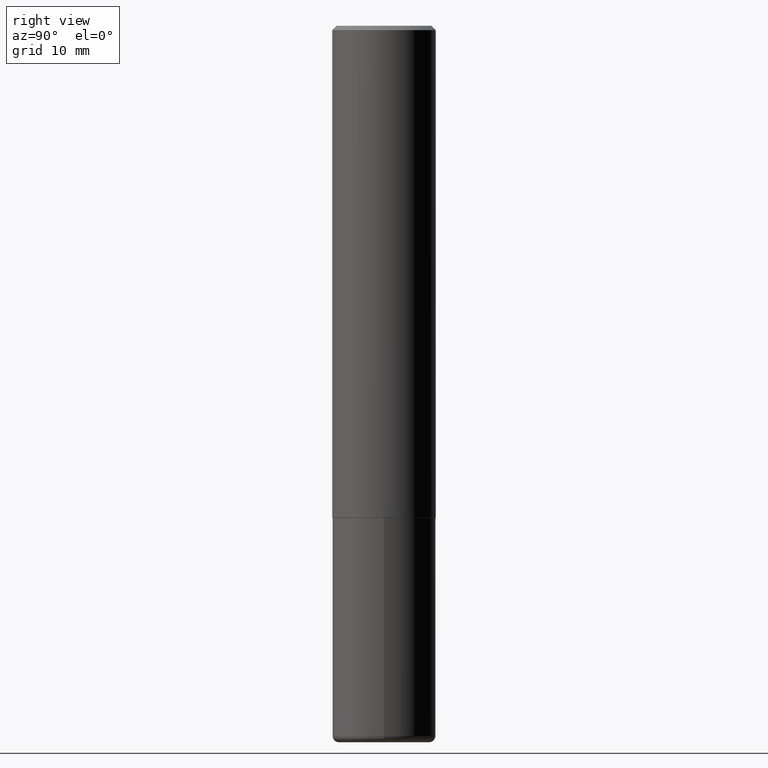
[diagram: clean part render]
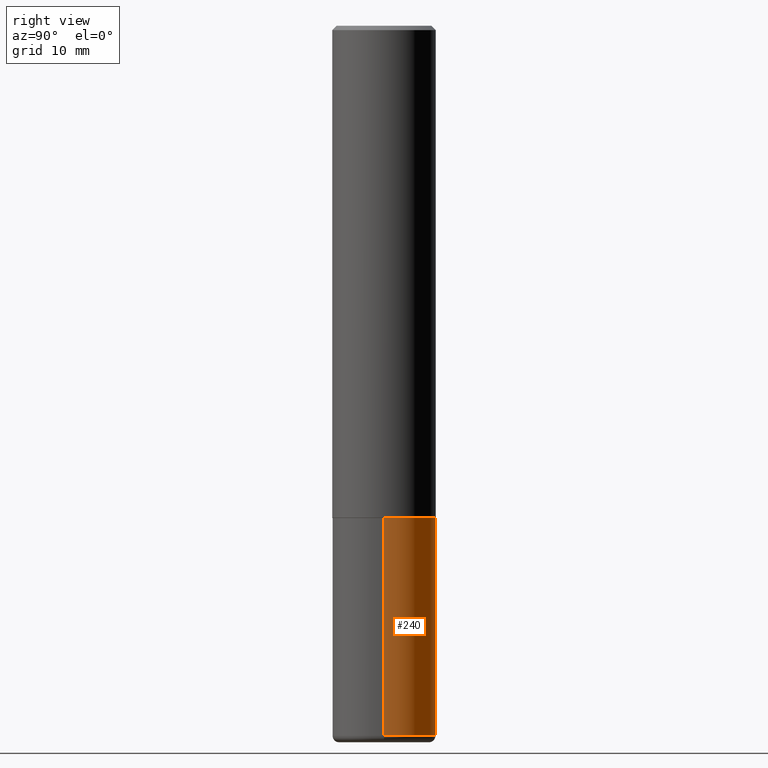
[diagram: same view with one face highlighted and labeled with its STEP entity id]
A machine part, right view. The second image highlights one B-rep face of the part: STEP entity #240.
In plain terms, the highlighted cylindrical surface (partial cylindrical patch) has radius 5.9995 mm, axis along (-0, 0, 1).
Its self-contained STEP definition (entity closure, byte-faithful):
#3 = DIRECTION ( 'NONE',  ( -2.445468806185136877E-29, 3.491481338843145188E-15, 1.000000000000000000 ) ) ;
#18 = CARTESIAN_POINT ( 'NONE',  ( -0.2362000000000000766, -7.891499259769821311E-15, -2.244100000000000428 ) ) ;
#26 = EDGE_CURVE ( 'NONE', #291, #218, #333, .T. ) ;
#42 = EDGE_CURVE ( 'NONE', #349, #291, #345, .T. ) ;
#46 = CYLINDRICAL_SURFACE ( 'NONE', #260, 0.2361999999999999933 ) ;
#63 = EDGE_LOOP ( 'NONE', ( #335, #64, #381, #129 ) ) ;
#64 = ORIENTED_EDGE ( 'NONE', *, *, #26, .T. ) ;
#81 = DIRECTION ( 'NONE',  ( 1.000000000000000000, -6.982962677686266711E-15, 4.876176775795936353E-29 ) ) ;
#85 = LINE ( 'NONE', #303, #376 ) ;
#102 = EDGE_CURVE ( 'NONE', #374, #218, #367, .T. ) ;
#129 = ORIENTED_EDGE ( 'NONE', *, *, #300, .F. ) ;
#138 = DIRECTION ( 'NONE',  ( -2.445468806185136597E-29, 3.491481338843145583E-15, 1.000000000000000000 ) ) ;
#141 = CARTESIAN_POINT ( 'NONE',  ( 7.917694353785617077E-29, -1.130436913077245307E-14, -3.237700000000000244 ) ) ;
#170 = CARTESIAN_POINT ( 'NONE',  ( 5.487876547960065873E-29, -7.835233272497903917E-15, -2.244100000000000428 ) ) ;
#172 = DIRECTION ( 'NONE',  ( -2.445468806185136597E-29, 3.491481338843145583E-15, 1.000000000000000000 ) ) ;
#186 = DIRECTION ( 'NONE',  ( -2.445468806185136877E-29, 3.491481338843145188E-15, 1.000000000000000000 ) ) ;
#187 = AXIS2_PLACEMENT_3D ( 'NONE', #141, #138, #369 ) ;
#200 = VECTOR ( 'NONE', #3, 39.37007874015748143 ) ;
#209 = CARTESIAN_POINT ( 'NONE',  ( 0.000000000000000000, 0.000000000000000000, 0.000000000000000000 ) ) ;
#218 = VERTEX_POINT ( 'NONE', #18 ) ;
#235 = CARTESIAN_POINT ( 'NONE',  ( -0.2361999999999999933, 1.678301941865356591E-15, -1.161852468318208757E-29 ) ) ;
#240 = ADVANCED_FACE ( 'NONE', ( #244 ), #46, .T. ) ;
#244 = FACE_OUTER_BOUND ( 'NONE', #63, .T. ) ;
#259 = CARTESIAN_POINT ( 'NONE',  ( 0.2362000000000000210, -9.484609056967400443E-15, -2.244100000000000428 ) ) ;
#260 = AXIS2_PLACEMENT_3D ( 'NONE', #209, #306, #81 ) ;
#291 = VERTEX_POINT ( 'NONE', #406 ) ;
#300 = EDGE_CURVE ( 'NONE', #349, #374, #85, .T. ) ;
#303 = CARTESIAN_POINT ( 'NONE',  ( 0.2361999999999999933, -1.649375784469496131E-15, 1.151752954443000088E-29 ) ) ;
#306 = DIRECTION ( 'NONE',  ( -2.445468806185136597E-29, 3.491481338843145583E-15, 1.000000000000000000 ) ) ;
#325 = AXIS2_PLACEMENT_3D ( 'NONE', #170, #172, #329 ) ;
#329 = DIRECTION ( 'NONE',  ( 1.000000000000000000, -6.982962677686268288E-15, 0.000000000000000000 ) ) ;
#333 = LINE ( 'NONE', #235, #200 ) ;
#335 = ORIENTED_EDGE ( 'NONE', *, *, #42, .T. ) ;
#345 = CIRCLE ( 'NONE', #187, 0.2361999999999999933 ) ;
#349 = VERTEX_POINT ( 'NONE', #409 ) ;
#367 = CIRCLE ( 'NONE', #325, 0.2362000000000000210 ) ;
#369 = DIRECTION ( 'NONE',  ( 1.000000000000000000, -6.982962677686265133E-15, 0.000000000000000000 ) ) ;
#374 = VERTEX_POINT ( 'NONE', #259 ) ;
#376 = VECTOR ( 'NONE', #186, 39.37007874015748143 ) ;
#381 = ORIENTED_EDGE ( 'NONE', *, *, #102, .F. ) ;
#406 = CARTESIAN_POINT ( 'NONE',  ( -0.2362000000000001321, -9.626067188907095099E-15, -3.237700000000000244 ) ) ;
#409 = CARTESIAN_POINT ( 'NONE',  ( 0.2362000000000001321, -1.295374491524195117E-14, -3.237700000000000244 ) ) ;